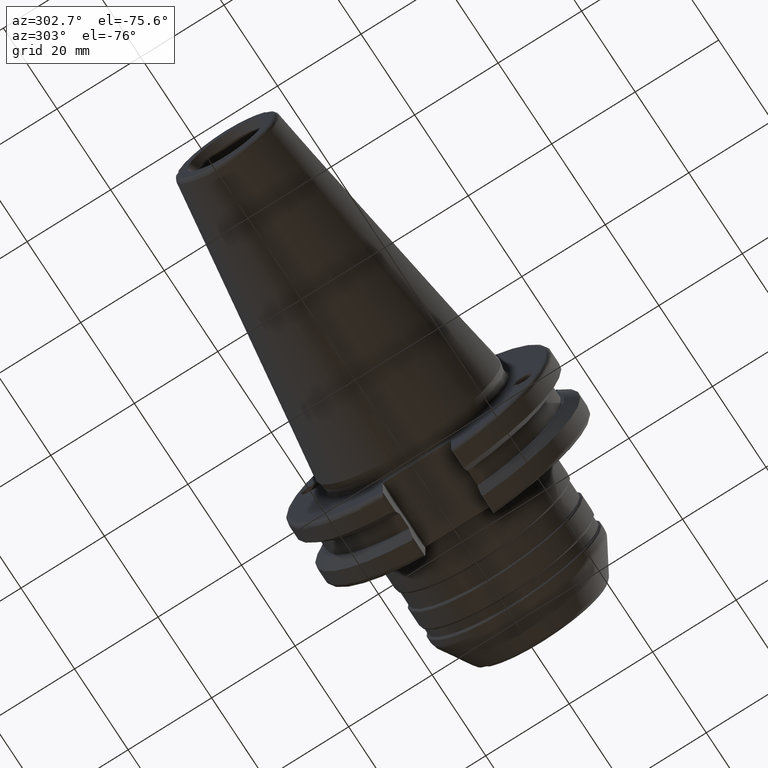
[diagram: clean part render]
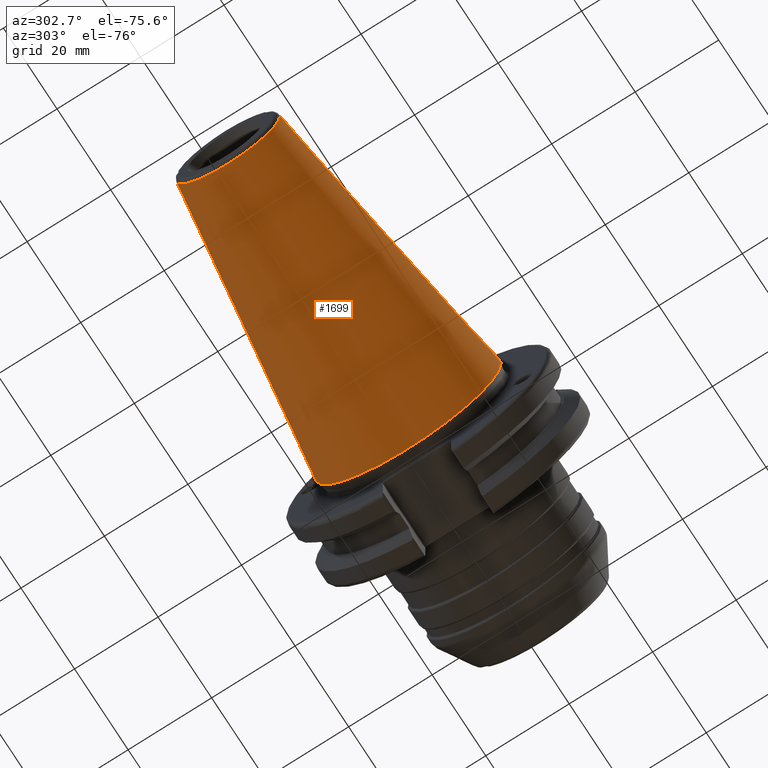
[diagram: same view with one face highlighted and labeled with its STEP entity id]
A machine part, auxiliary view. The second image highlights one B-rep face of the part: STEP entity #1699.
In plain terms, the highlighted conical surface has half-angle 8.297 deg.
Its self-contained STEP definition (entity closure, byte-faithful):
#130=CONICAL_SURFACE('',#1931,17.2484375,0.144812498238939);
#210=LINE('',#3179,#302);
#302=VECTOR('',#2412,17.2484375);
#417=FACE_OUTER_BOUND('',#527,.T.);
#527=EDGE_LOOP('',(#1478,#1479,#1480,#1481,#1482));
#648=CIRCLE('',#1925,12.3966635780937);
#649=CIRCLE('',#1926,12.3966635780937);
#653=CIRCLE('',#1932,22.225);
#820=VERTEX_POINT('',#3166);
#821=VERTEX_POINT('',#3167);
#824=VERTEX_POINT('',#3177);
#1052=EDGE_CURVE('',#820,#821,#648,.T.);
#1053=EDGE_CURVE('',#821,#820,#649,.T.);
#1057=EDGE_CURVE('',#824,#824,#653,.T.);
#1058=EDGE_CURVE('',#824,#821,#210,.T.);
#1478=ORIENTED_EDGE('',*,*,#1057,.F.);
#1479=ORIENTED_EDGE('',*,*,#1058,.T.);
#1480=ORIENTED_EDGE('',*,*,#1052,.F.);
#1481=ORIENTED_EDGE('',*,*,#1053,.F.);
#1482=ORIENTED_EDGE('',*,*,#1058,.F.);
#1699=ADVANCED_FACE('',(#417),#130,.T.);
#1925=AXIS2_PLACEMENT_3D('',#3168,#2396,#2397);
#1926=AXIS2_PLACEMENT_3D('',#3169,#2398,#2399);
#1931=AXIS2_PLACEMENT_3D('',#3176,#2408,#2409);
#1932=AXIS2_PLACEMENT_3D('',#3178,#2410,#2411);
#2396=DIRECTION('center_axis',(-1.,0.,0.));
#2397=DIRECTION('ref_axis',(0.,-1.,3.06161699786838E-17));
#2398=DIRECTION('center_axis',(-1.,0.,0.));
#2399=DIRECTION('ref_axis',(0.,-1.,3.06161699786838E-17));
#2408=DIRECTION('center_axis',(1.,0.,0.));
#2409=DIRECTION('ref_axis',(0.,1.,0.));
#2410=DIRECTION('center_axis',(1.,0.,0.));
#2411=DIRECTION('ref_axis',(0.,0.,-1.));
#2412=DIRECTION('',(-0.989532981063282,0.144306893071729,1.76724974695192E-17));
#3166=CARTESIAN_POINT('',(-67.3943068930717,-1.5181534371019E-15,12.3966635780937));
#3167=CARTESIAN_POINT('',(-67.3943068930718,-12.3966635780937,-1.5181534371019E-15));
#3168=CARTESIAN_POINT('Origin',(-67.3943068930717,0.,-1.89769179637738E-15));
#3169=CARTESIAN_POINT('Origin',(-67.3943068930717,0.,-1.89769179637738E-15));
#3176=CARTESIAN_POINT('Origin',(-34.125,0.,0.));
#3177=CARTESIAN_POINT('',(0.,-22.225,-2.72177751110499E-15));
#3178=CARTESIAN_POINT('Origin',(0.,0.,0.));
#3179=CARTESIAN_POINT('',(-34.125,-17.2484375,-2.11232437746682E-15));